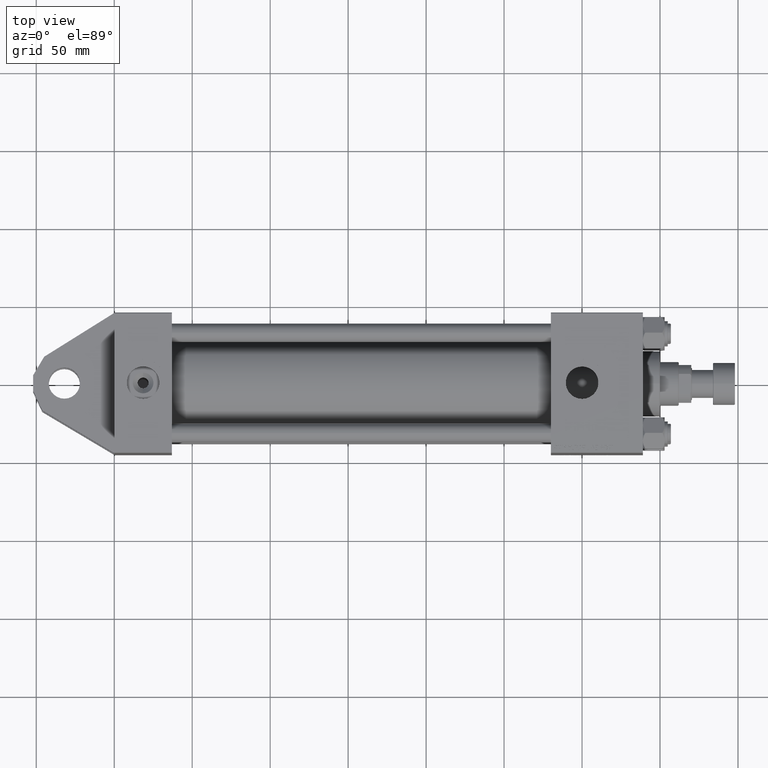
[diagram: clean part render]
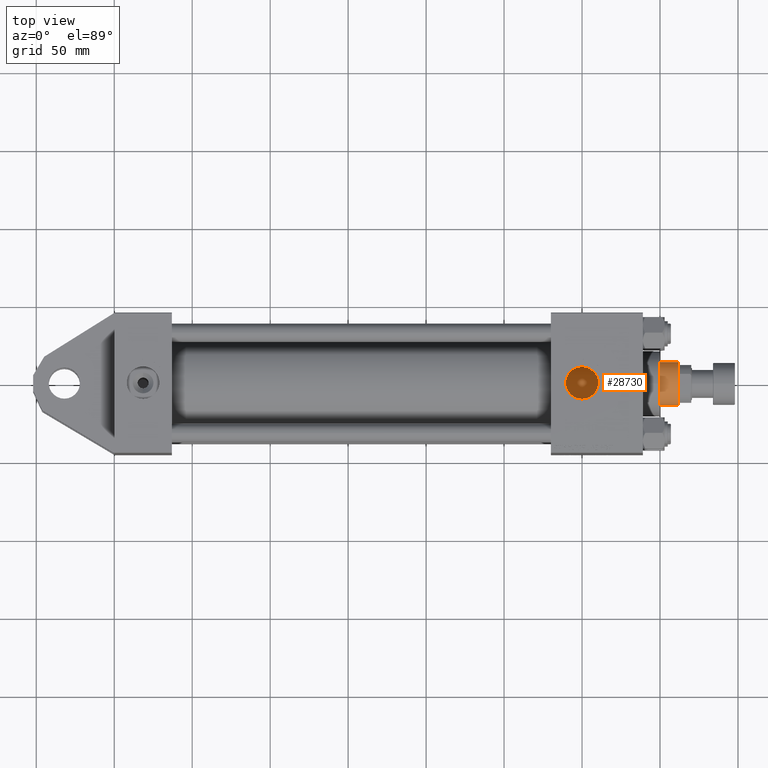
[diagram: same view with one face highlighted and labeled with its STEP entity id]
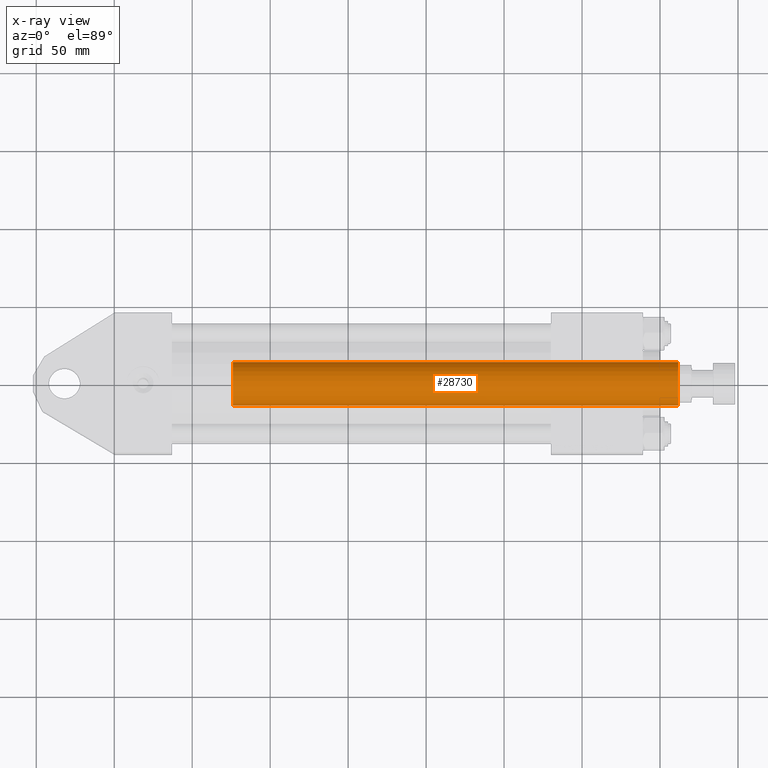
[diagram: x-ray of the same camera — body ghosted, the highlighted face saturated]
A machine part, top view. The second image highlights one B-rep face of the part: STEP entity #28730.
The next image is the same camera in x-ray: the body ghosted, the highlighted face saturated — about 0% of this face is hidden behind the body in this view.
In plain terms, the highlighted cylindrical surface (edge-blend (fillet) strip) has radius 14 mm, axis along (-1, 0, 0).
Its self-contained STEP definition (entity closure, byte-faithful):
#597 = CARTESIAN_POINT ( 'NONE',  ( 14.00000000000000178, 1.714505518806294835E-15, 39.00000000000000000 ) ) ;
#1469 = CIRCLE ( 'NONE', #40284, 14.00000000000000178 ) ;
#1573 = EDGE_CURVE ( 'NONE', #25383, #31167, #10771, .T. ) ;
#2341 = VERTEX_POINT ( 'NONE', #6282 ) ;
#3243 = DIRECTION ( 'NONE',  ( 0.000000000000000000, 0.000000000000000000, -1.000000000000000000 ) ) ;
#3897 = DIRECTION ( 'NONE',  ( 0.000000000000000000, 0.000000000000000000, 1.000000000000000000 ) ) ;
#4018 = ORIENTED_EDGE ( 'NONE', *, *, #32265, .T. ) ;
#5656 = CARTESIAN_POINT ( 'NONE',  ( 0.000000000000000000, 0.000000000000000000, 324.9999999999999432 ) ) ;
#6282 = CARTESIAN_POINT ( 'NONE',  ( -14.00000000000000178, 0.000000000000000000, 324.4999999999999432 ) ) ;
#7464 = DIRECTION ( 'NONE',  ( 1.000000000000000000, 0.000000000000000000, 0.000000000000000000 ) ) ;
#9712 = VECTOR ( 'NONE', #39024, 1000.000000000000000 ) ;
#10760 = EDGE_CURVE ( 'NONE', #19283, #31167, #1469, .T. ) ;
#10771 = LINE ( 'NONE', #22903, #9712 ) ;
#11173 = EDGE_LOOP ( 'NONE', ( #17814, #4018, #33250, #40416 ) ) ;
#13157 = EDGE_CURVE ( 'NONE', #2341, #19283, #27485, .T. ) ;
#15882 = VECTOR ( 'NONE', #19577, 1000.000000000000000 ) ;
#17557 = CYLINDRICAL_SURFACE ( 'NONE', #33927, 14.00000000000000178 ) ;
#17814 = ORIENTED_EDGE ( 'NONE', *, *, #1573, .F. ) ;
#19283 = VERTEX_POINT ( 'NONE', #28787 ) ;
#19577 = DIRECTION ( 'NONE',  ( -0.000000000000000000, -0.000000000000000000, -1.000000000000000000 ) ) ;
#20008 = DIRECTION ( 'NONE',  ( 1.000000000000000000, 0.000000000000000000, 0.000000000000000000 ) ) ;
#21367 = AXIS2_PLACEMENT_3D ( 'NONE', #39423, #3243, #7464 ) ;
#22903 = CARTESIAN_POINT ( 'NONE',  ( 14.00000000000000178, 1.714505518806294835E-15, 324.9999999999999432 ) ) ;
#25383 = VERTEX_POINT ( 'NONE', #51827 ) ;
#25461 = DIRECTION ( 'NONE',  ( -0.000000000000000000, -0.000000000000000000, -1.000000000000000000 ) ) ;
#27485 = LINE ( 'NONE', #51824, #15882 ) ;
#28730 = ADVANCED_FACE ( 'NONE', ( #41603 ), #17557, .T. ) ;
#28787 = CARTESIAN_POINT ( 'NONE',  ( -14.00000000000000178, 0.000000000000000000, 39.00000000000000000 ) ) ;
#31167 = VERTEX_POINT ( 'NONE', #597 ) ;
#32265 = EDGE_CURVE ( 'NONE', #25383, #2341, #37394, .T. ) ;
#33250 = ORIENTED_EDGE ( 'NONE', *, *, #13157, .T. ) ;
#33927 = AXIS2_PLACEMENT_3D ( 'NONE', #5656, #25461, #38154 ) ;
#36380 = CARTESIAN_POINT ( 'NONE',  ( 0.000000000000000000, 0.000000000000000000, 39.00000000000000000 ) ) ;
#37394 = CIRCLE ( 'NONE', #21367, 14.00000000000000178 ) ;
#38154 = DIRECTION ( 'NONE',  ( -1.000000000000000000, 0.000000000000000000, 0.000000000000000000 ) ) ;
#39024 = DIRECTION ( 'NONE',  ( -0.000000000000000000, -0.000000000000000000, -1.000000000000000000 ) ) ;
#39423 = CARTESIAN_POINT ( 'NONE',  ( 0.000000000000000000, 0.000000000000000000, 324.4999999999999432 ) ) ;
#40284 = AXIS2_PLACEMENT_3D ( 'NONE', #36380, #3897, #20008 ) ;
#40416 = ORIENTED_EDGE ( 'NONE', *, *, #10760, .T. ) ;
#41603 = FACE_OUTER_BOUND ( 'NONE', #11173, .T. ) ;
#51824 = CARTESIAN_POINT ( 'NONE',  ( -14.00000000000000178, 0.000000000000000000, 324.9999999999999432 ) ) ;
#51827 = CARTESIAN_POINT ( 'NONE',  ( 14.00000000000000178, 1.714505518806294835E-15, 324.4999999999999432 ) ) ;